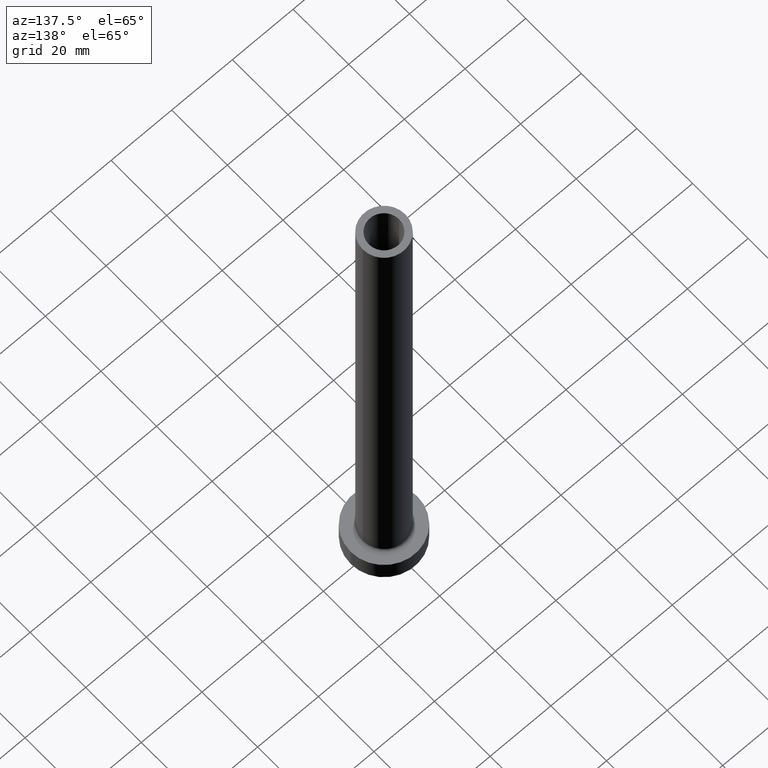
[diagram: clean part render]
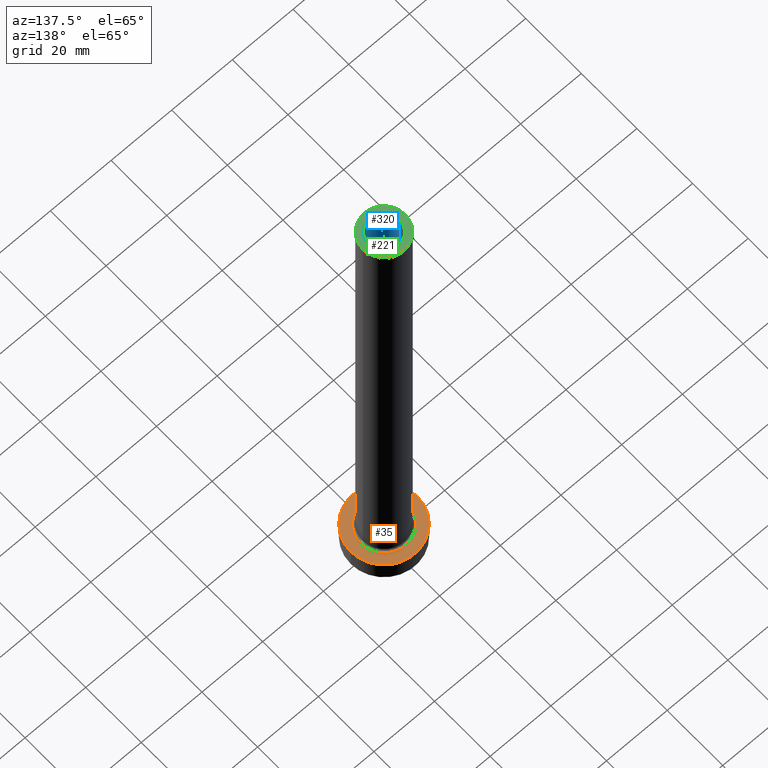
[diagram: same view with three faces highlighted in distinct colors, each labeled with its STEP entity id]
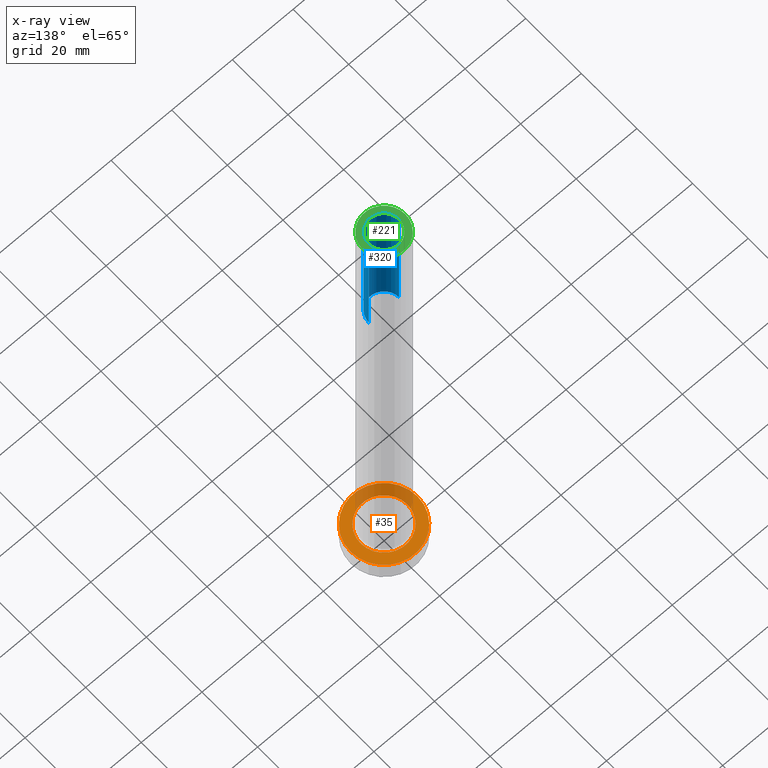
[diagram: x-ray of the same camera — body ghosted, the three highlighted faces saturated]
A machine part, auxiliary view with three faces highlighted in distinct colors.
The next image is the same camera in x-ray (body ghosted, the three faces saturated) — at least one of them is partly hidden behind the body in this view.
Their STEP definitions:

[orange] entity #35 — the highlighted planar face has unit normal (0, 0, 1).
#1 = CIRCLE ( 'NONE', #99, 7.700000000000001066 ) ;
#6 = FACE_OUTER_BOUND ( 'NONE', #232, .T. ) ;
#10 = DIRECTION ( 'NONE',  ( -0.000000000000000000, -0.000000000000000000, -1.000000000000000000 ) ) ;
#11 = EDGE_LOOP ( 'NONE', ( #354, #219 ) ) ;
#35 = ADVANCED_FACE ( 'NONE', ( #36, #6 ), #248, .T. ) ;
#36 = FACE_BOUND ( 'NONE', #11, .T. ) ;
#43 = DIRECTION ( 'NONE',  ( 0.000000000000000000, 0.000000000000000000, 1.000000000000000000 ) ) ;
#50 = EDGE_CURVE ( 'NONE', #129, #68, #304, .T. ) ;
#54 = EDGE_CURVE ( 'NONE', #68, #129, #151, .T. ) ;
#67 = DIRECTION ( 'NONE',  ( 1.000000000000000000, 0.000000000000000000, 0.000000000000000000 ) ) ;
#68 = VERTEX_POINT ( 'NONE', #399 ) ;
#72 = DIRECTION ( 'NONE',  ( 1.000000000000000000, 0.000000000000000000, 0.000000000000000000 ) ) ;
#74 = DIRECTION ( 'NONE',  ( 0.000000000000000000, 0.000000000000000000, 1.000000000000000000 ) ) ;
#76 = CIRCLE ( 'NONE', #226, 7.700000000000001066 ) ;
#83 = DIRECTION ( 'NONE',  ( -0.000000000000000000, -0.000000000000000000, -1.000000000000000000 ) ) ;
#95 = CARTESIAN_POINT ( 'NONE',  ( 0.000000000000000000, 0.000000000000000000, 7.000000000000000000 ) ) ;
#98 = ORIENTED_EDGE ( 'NONE', *, *, #50, .T. ) ;
#99 = AXIS2_PLACEMENT_3D ( 'NONE', #450, #83, #337 ) ;
#105 = CARTESIAN_POINT ( 'NONE',  ( 0.000000000000000000, 0.000000000000000000, 7.000000000000000000 ) ) ;
#106 = EDGE_CURVE ( 'NONE', #249, #160, #76, .T. ) ;
#116 = AXIS2_PLACEMENT_3D ( 'NONE', #105, #435, #209 ) ;
#124 = AXIS2_PLACEMENT_3D ( 'NONE', #95, #74, #72 ) ;
#129 = VERTEX_POINT ( 'NONE', #257 ) ;
#140 = DIRECTION ( 'NONE',  ( 1.000000000000000000, 0.000000000000000000, 0.000000000000000000 ) ) ;
#151 = CIRCLE ( 'NONE', #427, 11.00000000000000000 ) ;
#160 = VERTEX_POINT ( 'NONE', #440 ) ;
#205 = ORIENTED_EDGE ( 'NONE', *, *, #54, .T. ) ;
#209 = DIRECTION ( 'NONE',  ( 1.000000000000000000, 0.000000000000000000, -0.000000000000000000 ) ) ;
#219 = ORIENTED_EDGE ( 'NONE', *, *, #106, .T. ) ;
#226 = AXIS2_PLACEMENT_3D ( 'NONE', #253, #10, #140 ) ;
#232 = EDGE_LOOP ( 'NONE', ( #205, #98 ) ) ;
#248 = PLANE ( 'NONE',  #116 ) ;
#249 = VERTEX_POINT ( 'NONE', #333 ) ;
#253 = CARTESIAN_POINT ( 'NONE',  ( 0.000000000000000000, 0.000000000000000000, 7.000000000000000000 ) ) ;
#257 = CARTESIAN_POINT ( 'NONE',  ( 11.00000000000000000, 1.347111479062088405E-15, 7.000000000000000000 ) ) ;
#274 = EDGE_CURVE ( 'NONE', #160, #249, #1, .T. ) ;
#304 = CIRCLE ( 'NONE', #124, 11.00000000000000000 ) ;
#333 = CARTESIAN_POINT ( 'NONE',  ( -7.700000000000001066, 9.429780353434621002E-16, 7.000000000000006217 ) ) ;
#337 = DIRECTION ( 'NONE',  ( 1.000000000000000000, 0.000000000000000000, 0.000000000000000000 ) ) ;
#354 = ORIENTED_EDGE ( 'NONE', *, *, #274, .T. ) ;
#394 = CARTESIAN_POINT ( 'NONE',  ( 0.000000000000000000, 0.000000000000000000, 7.000000000000000000 ) ) ;
#399 = CARTESIAN_POINT ( 'NONE',  ( -11.00000000000000000, 0.000000000000000000, 7.000000000000000000 ) ) ;
#427 = AXIS2_PLACEMENT_3D ( 'NONE', #394, #43, #67 ) ;
#435 = DIRECTION ( 'NONE',  ( 0.000000000000000000, 0.000000000000000000, 1.000000000000000000 ) ) ;
#440 = CARTESIAN_POINT ( 'NONE',  ( 7.700000000000001066, 0.000000000000000000, 7.000000000000006217 ) ) ;
#450 = CARTESIAN_POINT ( 'NONE',  ( 0.000000000000000000, 0.000000000000000000, 7.000000000000000000 ) ) ;

[blue] entity #320 — the highlighted cylindrical surface (edge-blend (fillet) strip) has radius 5 mm, axis along (0, 0, -1).
#25 = DIRECTION ( 'NONE',  ( 0.000000000000000000, 0.000000000000000000, -1.000000000000000000 ) ) ;
#29 = VERTEX_POINT ( 'NONE', #174 ) ;
#33 = VERTEX_POINT ( 'NONE', #319 ) ;
#34 = DIRECTION ( 'NONE',  ( 0.000000000000000000, 0.000000000000000000, -1.000000000000000000 ) ) ;
#37 = AXIS2_PLACEMENT_3D ( 'NONE', #263, #107, #404 ) ;
#62 = AXIS2_PLACEMENT_3D ( 'NONE', #269, #385, #341 ) ;
#63 = CARTESIAN_POINT ( 'NONE',  ( -5.000000000000000000, 0.000000000000000000, 175.0000000000000284 ) ) ;
#85 = CARTESIAN_POINT ( 'NONE',  ( 5.000000000000000000, 6.123233995736766282E-16, 130.0000000000000000 ) ) ;
#88 = FACE_OUTER_BOUND ( 'NONE', #461, .T. ) ;
#93 = VECTOR ( 'NONE', #34, 1000.000000000000000 ) ;
#107 = DIRECTION ( 'NONE',  ( 0.000000000000000000, 0.000000000000000000, 1.000000000000000000 ) ) ;
#113 = VECTOR ( 'NONE', #25, 1000.000000000000000 ) ;
#153 = CARTESIAN_POINT ( 'NONE',  ( 5.000000000000000000, 6.123233995736766282E-16, 175.0000000000000284 ) ) ;
#157 = ORIENTED_EDGE ( 'NONE', *, *, #329, .T. ) ;
#174 = CARTESIAN_POINT ( 'NONE',  ( -5.000000000000000000, 0.000000000000000000, 130.0000000000000000 ) ) ;
#191 = EDGE_CURVE ( 'NONE', #33, #212, #448, .T. ) ;
#212 = VERTEX_POINT ( 'NONE', #265 ) ;
#216 = ORIENTED_EDGE ( 'NONE', *, *, #396, .F. ) ;
#233 = AXIS2_PLACEMENT_3D ( 'NONE', #239, #315, #417 ) ;
#239 = CARTESIAN_POINT ( 'NONE',  ( 0.000000000000000000, 0.000000000000000000, 130.0000000000000000 ) ) ;
#263 = CARTESIAN_POINT ( 'NONE',  ( 0.000000000000000000, 0.000000000000000000, 175.0000000000000284 ) ) ;
#265 = CARTESIAN_POINT ( 'NONE',  ( 5.000000000000000000, 6.123233995736766282E-16, 175.0000000000000284 ) ) ;
#269 = CARTESIAN_POINT ( 'NONE',  ( 0.000000000000000000, 0.000000000000000000, 175.0000000000000284 ) ) ;
#271 = LINE ( 'NONE', #153, #93 ) ;
#301 = CIRCLE ( 'NONE', #233, 5.000000000000000000 ) ;
#305 = CYLINDRICAL_SURFACE ( 'NONE', #62, 5.000000000000000000 ) ;
#315 = DIRECTION ( 'NONE',  ( 0.000000000000000000, 0.000000000000000000, 1.000000000000000000 ) ) ;
#319 = CARTESIAN_POINT ( 'NONE',  ( -5.000000000000000000, 0.000000000000000000, 175.0000000000000284 ) ) ;
#320 = ADVANCED_FACE ( 'NONE', ( #88 ), #305, .F. ) ;
#324 = VERTEX_POINT ( 'NONE', #85 ) ;
#329 = EDGE_CURVE ( 'NONE', #212, #324, #271, .T. ) ;
#338 = EDGE_CURVE ( 'NONE', #29, #324, #301, .T. ) ;
#341 = DIRECTION ( 'NONE',  ( -1.000000000000000000, 0.000000000000000000, 0.000000000000000000 ) ) ;
#385 = DIRECTION ( 'NONE',  ( 0.000000000000000000, 0.000000000000000000, -1.000000000000000000 ) ) ;
#396 = EDGE_CURVE ( 'NONE', #33, #29, #415, .T. ) ;
#404 = DIRECTION ( 'NONE',  ( 1.000000000000000000, 0.000000000000000000, 0.000000000000000000 ) ) ;
#415 = LINE ( 'NONE', #63, #113 ) ;
#416 = ORIENTED_EDGE ( 'NONE', *, *, #191, .T. ) ;
#417 = DIRECTION ( 'NONE',  ( 1.000000000000000000, 0.000000000000000000, 0.000000000000000000 ) ) ;
#424 = ORIENTED_EDGE ( 'NONE', *, *, #338, .F. ) ;
#448 = CIRCLE ( 'NONE', #37, 5.000000000000000000 ) ;
#461 = EDGE_LOOP ( 'NONE', ( #416, #157, #424, #216 ) ) ;

[green] entity #221 — the highlighted planar face has unit normal (0, 0, 1).
#3 = DIRECTION ( 'NONE',  ( 1.000000000000000000, 0.000000000000000000, 0.000000000000000000 ) ) ;
#4 = CARTESIAN_POINT ( 'NONE',  ( -7.000000000000000888, 0.000000000000000000, 175.0000000000000284 ) ) ;
#13 = FACE_OUTER_BOUND ( 'NONE', #428, .T. ) ;
#16 = CIRCLE ( 'NONE', #139, 7.000000000000000888 ) ;
#24 = AXIS2_PLACEMENT_3D ( 'NONE', #168, #247, #3 ) ;
#26 = EDGE_CURVE ( 'NONE', #288, #86, #16, .T. ) ;
#27 = EDGE_LOOP ( 'NONE', ( #284, #388 ) ) ;
#33 = VERTEX_POINT ( 'NONE', #319 ) ;
#37 = AXIS2_PLACEMENT_3D ( 'NONE', #263, #107, #404 ) ;
#42 = DIRECTION ( 'NONE',  ( 0.000000000000000000, 0.000000000000000000, 1.000000000000000000 ) ) ;
#66 = EDGE_CURVE ( 'NONE', #86, #288, #167, .T. ) ;
#80 = CARTESIAN_POINT ( 'NONE',  ( 7.000000000000000888, 8.572527594031472204E-16, 175.0000000000000284 ) ) ;
#86 = VERTEX_POINT ( 'NONE', #4 ) ;
#107 = DIRECTION ( 'NONE',  ( 0.000000000000000000, 0.000000000000000000, 1.000000000000000000 ) ) ;
#108 = AXIS2_PLACEMENT_3D ( 'NONE', #268, #292, #297 ) ;
#112 = PLANE ( 'NONE',  #108 ) ;
#136 = AXIS2_PLACEMENT_3D ( 'NONE', #372, #441, #369 ) ;
#139 = AXIS2_PLACEMENT_3D ( 'NONE', #366, #42, #401 ) ;
#142 = FACE_BOUND ( 'NONE', #27, .T. ) ;
#167 = CIRCLE ( 'NONE', #24, 7.000000000000000888 ) ;
#168 = CARTESIAN_POINT ( 'NONE',  ( 0.000000000000000000, 0.000000000000000000, 175.0000000000000284 ) ) ;
#191 = EDGE_CURVE ( 'NONE', #33, #212, #448, .T. ) ;
#200 = ORIENTED_EDGE ( 'NONE', *, *, #26, .T. ) ;
#208 = EDGE_CURVE ( 'NONE', #212, #33, #282, .T. ) ;
#212 = VERTEX_POINT ( 'NONE', #265 ) ;
#221 = ADVANCED_FACE ( 'NONE', ( #142, #13 ), #112, .T. ) ;
#247 = DIRECTION ( 'NONE',  ( 0.000000000000000000, 0.000000000000000000, 1.000000000000000000 ) ) ;
#263 = CARTESIAN_POINT ( 'NONE',  ( 0.000000000000000000, 0.000000000000000000, 175.0000000000000284 ) ) ;
#265 = CARTESIAN_POINT ( 'NONE',  ( 5.000000000000000000, 6.123233995736766282E-16, 175.0000000000000284 ) ) ;
#268 = CARTESIAN_POINT ( 'NONE',  ( 0.000000000000000000, 0.000000000000000000, 175.0000000000000284 ) ) ;
#282 = CIRCLE ( 'NONE', #136, 5.000000000000000000 ) ;
#284 = ORIENTED_EDGE ( 'NONE', *, *, #191, .F. ) ;
#288 = VERTEX_POINT ( 'NONE', #80 ) ;
#292 = DIRECTION ( 'NONE',  ( 0.000000000000000000, 0.000000000000000000, 1.000000000000000000 ) ) ;
#297 = DIRECTION ( 'NONE',  ( 1.000000000000000000, 0.000000000000000000, -0.000000000000000000 ) ) ;
#319 = CARTESIAN_POINT ( 'NONE',  ( -5.000000000000000000, 0.000000000000000000, 175.0000000000000284 ) ) ;
#350 = ORIENTED_EDGE ( 'NONE', *, *, #66, .T. ) ;
#366 = CARTESIAN_POINT ( 'NONE',  ( 0.000000000000000000, 0.000000000000000000, 175.0000000000000284 ) ) ;
#369 = DIRECTION ( 'NONE',  ( 1.000000000000000000, 0.000000000000000000, 0.000000000000000000 ) ) ;
#372 = CARTESIAN_POINT ( 'NONE',  ( 0.000000000000000000, 0.000000000000000000, 175.0000000000000284 ) ) ;
#388 = ORIENTED_EDGE ( 'NONE', *, *, #208, .F. ) ;
#401 = DIRECTION ( 'NONE',  ( 1.000000000000000000, 0.000000000000000000, 0.000000000000000000 ) ) ;
#404 = DIRECTION ( 'NONE',  ( 1.000000000000000000, 0.000000000000000000, 0.000000000000000000 ) ) ;
#428 = EDGE_LOOP ( 'NONE', ( #350, #200 ) ) ;
#441 = DIRECTION ( 'NONE',  ( 0.000000000000000000, 0.000000000000000000, 1.000000000000000000 ) ) ;
#448 = CIRCLE ( 'NONE', #37, 5.000000000000000000 ) ;